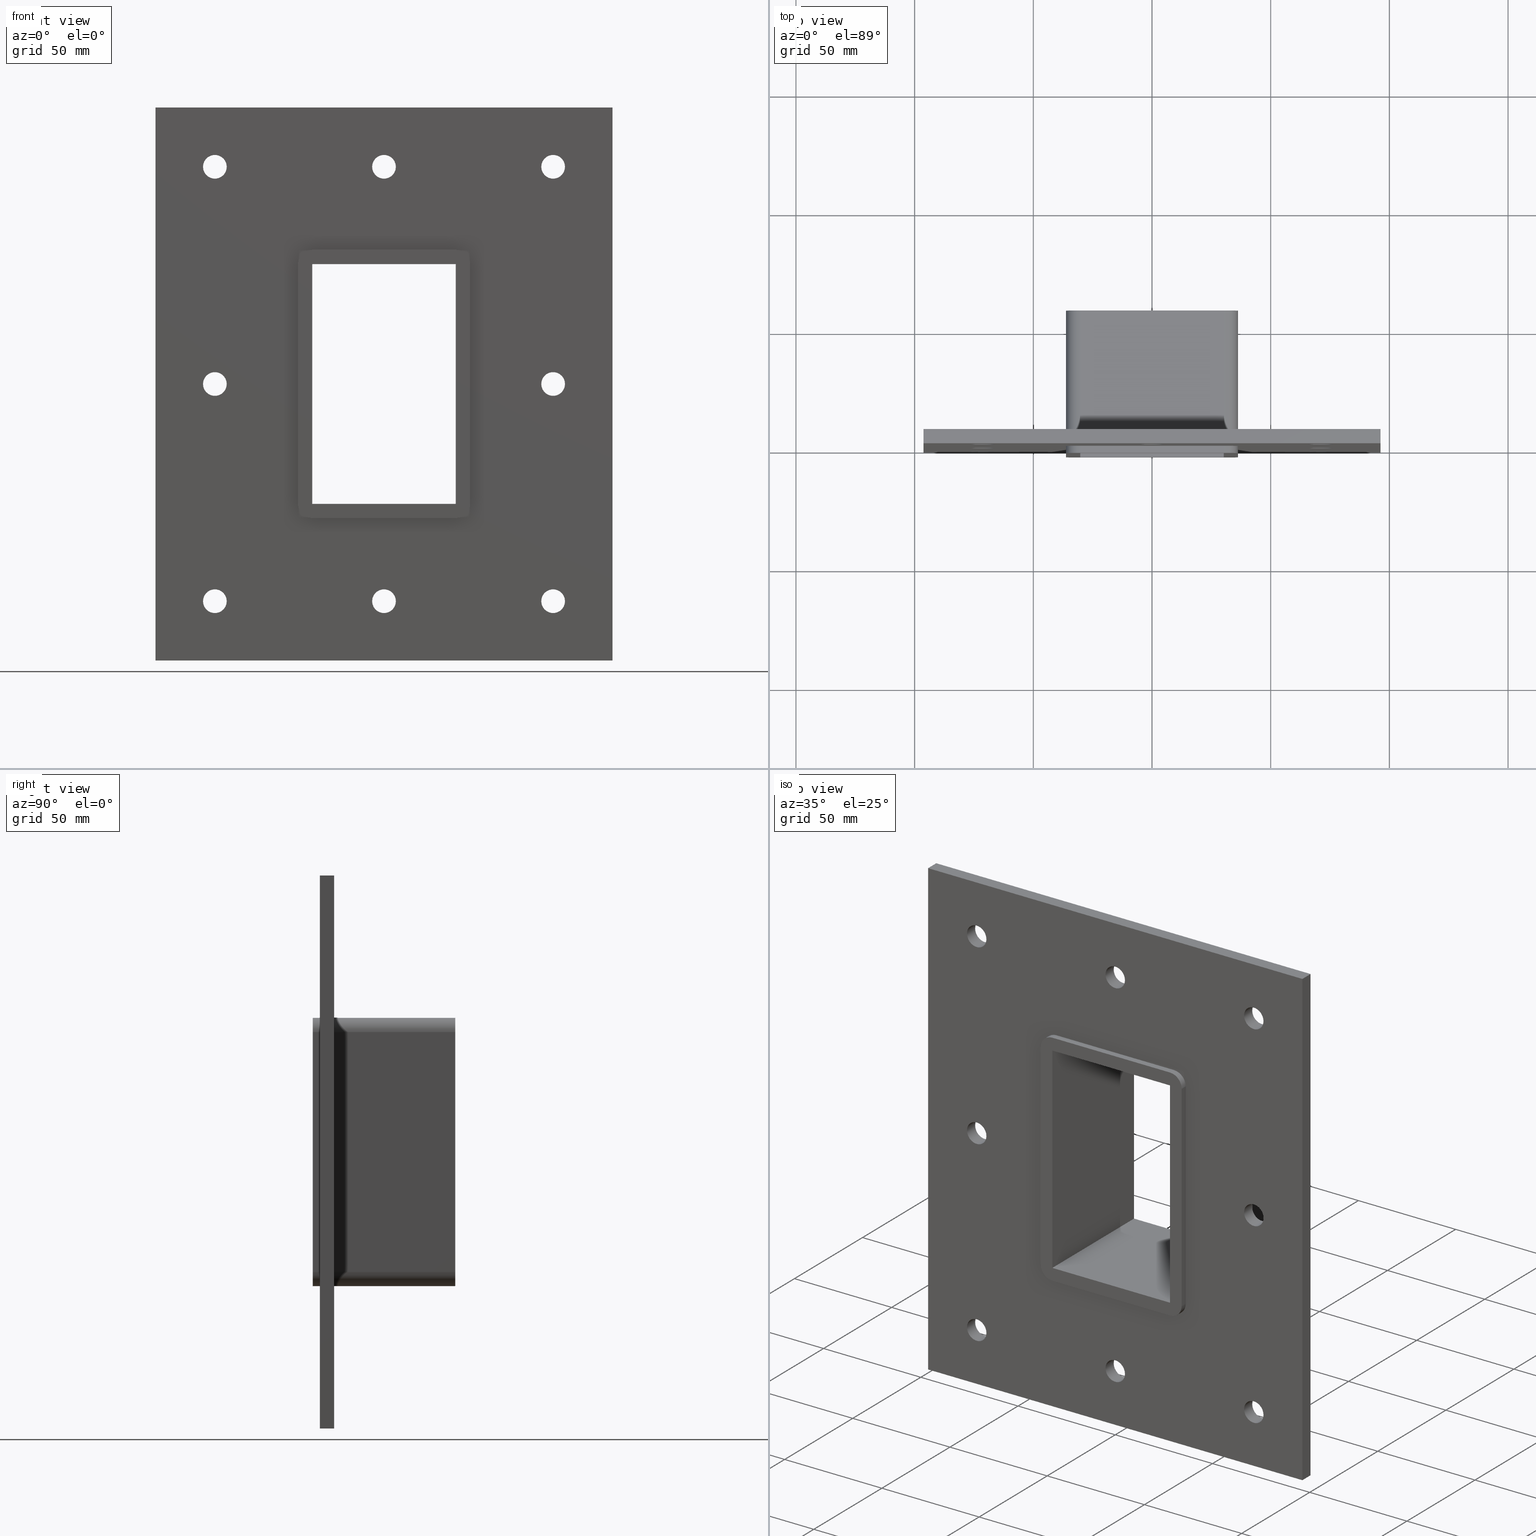
[diagram: canonical four-view strip — front | top / right | iso, engineering-drawing reading convention]
A machine part, canonical four-view strip (front | top / right | iso — engineering-drawing reading convention). The complete STEP part file that produces these views, byte-faithful:
ISO-10303-21;
HEADER;
/****************************************************************
 * Generated by software with PDElib inside                    *
 * PDElib Version v51a, created Wed 11/30/2011                  *
 * ITI Transcendata (http://www.transcendata.com/)              *
 ****************************************************************/
FILE_DESCRIPTION((''),'2;1');
FILE_NAME('L:\\roxtec-se\\Projects\\Ongoing_Projects\\12403 Transit Designer\\Product-data\\Product Data\\Transit designer Cad Generator\\CreatedFiles\\STEP\\GBEX1X1.stp','2015-02-17T15:00:13',(''),(''),'Autodesk Inventor 2013','Autodesk Inventor 2013','');
FILE_SCHEMA(('AUTOMOTIVE_DESIGN { 1 0 10303 214 1 1 1 1 }'));
ENDSEC;
DATA;
#5=APPLICATION_CONTEXT('automotive design');
#6=APPLICATION_PROTOCOL_DEFINITION('International Standard','automotive_design',2001,#5);
#7=PRODUCT_CONTEXT('',#5,'mechanical');
#8=PRODUCT('G B Ex','G B Ex',$,(#7));
#9=PRODUCT_RELATED_PRODUCT_CATEGORY('part',$,(#8));
#10=PRODUCT_DEFINITION_FORMATION('',$,#8);
#11=PRODUCT_DEFINITION_CONTEXT('part definition',#5,'design');
#12=PRODUCT_DEFINITION('',$,#10,#11);
#18=(NAMED_UNIT(*)PLANE_ANGLE_UNIT()SI_UNIT($,.RADIAN.));
#19=DIMENSIONAL_EXPONENTS(0.0,0.0,0.0,0.0,0.0,0.0,0.0);
#20=PLANE_ANGLE_MEASURE_WITH_UNIT(PLANE_ANGLE_MEASURE(0.0174532925),#18);
#24=(CONVERSION_BASED_UNIT('DEGREE',#20)NAMED_UNIT(#19)PLANE_ANGLE_UNIT());
#28=(NAMED_UNIT(*)SI_UNIT($,.STERADIAN.)SOLID_ANGLE_UNIT());
#32=(LENGTH_UNIT()NAMED_UNIT(*)SI_UNIT(.MILLI.,.METRE.));
#34=UNCERTAINTY_MEASURE_WITH_UNIT(LENGTH_MEASURE(0.01),#32,'DISTANCE_ACCURACY_VALUE','');
#36=(GEOMETRIC_REPRESENTATION_CONTEXT(3)GLOBAL_UNCERTAINTY_ASSIGNED_CONTEXT((#34))GLOBAL_UNIT_ASSIGNED_CONTEXT((#24,#28,#32))REPRESENTATION_CONTEXT('None','None'));
#37=AXIS2_PLACEMENT_3D('',#38,#39,#40);
#38=CARTESIAN_POINT('',(0.0,0.0,0.0));
#39=DIRECTION('',(0.0,0.0,1.0));
#40=DIRECTION('',(1.0,0.0,0.0));
#41=SHAPE_REPRESENTATION('',(#37),#36);
#42=PRODUCT_DEFINITION_SHAPE('','',#12);
#43=SHAPE_DEFINITION_REPRESENTATION(#42,#41);
#49=(NAMED_UNIT(*)PLANE_ANGLE_UNIT()SI_UNIT($,.RADIAN.));
#50=DIMENSIONAL_EXPONENTS(0.0,0.0,0.0,0.0,0.0,0.0,0.0);
#51=PLANE_ANGLE_MEASURE_WITH_UNIT(PLANE_ANGLE_MEASURE(0.0174532925),#49);
#55=(CONVERSION_BASED_UNIT('DEGREE',#51)NAMED_UNIT(#50)PLANE_ANGLE_UNIT());
#59=(NAMED_UNIT(*)SI_UNIT($,.STERADIAN.)SOLID_ANGLE_UNIT());
#63=(LENGTH_UNIT()NAMED_UNIT(*)SI_UNIT(.MILLI.,.METRE.));
#65=UNCERTAINTY_MEASURE_WITH_UNIT(LENGTH_MEASURE(0.000001),#63,'DISTANCE_ACCURACY_VALUE','');
#67=(GEOMETRIC_REPRESENTATION_CONTEXT(3)GLOBAL_UNCERTAINTY_ASSIGNED_CONTEXT((#65))GLOBAL_UNIT_ASSIGNED_CONTEXT((#55,#59,#63))REPRESENTATION_CONTEXT('','3D'));
#68=CARTESIAN_POINT('',(-71.250000000000114,308.13187112014236,-91.500000000000028));
#69=DIRECTION('',(0.0,-1.0,0.0));
#70=DIRECTION('',(1.0,0.0,0.0));
#71=AXIS2_PLACEMENT_3D('',#68,#69,#70);
#72=CYLINDRICAL_SURFACE('',#71,5.0);
#73=CARTESIAN_POINT('',(-76.250000000000114,6.000000000000014,-91.500000000000028));
#74=VERTEX_POINT('',#73);
#75=CARTESIAN_POINT('',(-71.250000000000114,6.000000000000014,-91.500000000000028));
#76=DIRECTION('',(0.0,-1.0,0.0));
#77=DIRECTION('',(1.0,0.0,0.0));
#78=AXIS2_PLACEMENT_3D('',#75,#76,#77);
#79=CIRCLE('',#78,5.0);
#80=EDGE_CURVE('',#74,#74,#79,.T.);
#81=ORIENTED_EDGE('',*,*,#80,.F.);
#82=EDGE_LOOP('',(#81));
#83=FACE_OUTER_BOUND('',#82,.T.);
#84=CARTESIAN_POINT('',(-66.250000000000114,0.0,-91.500000000000028));
#85=VERTEX_POINT('',#84);
#86=CARTESIAN_POINT('',(-71.250000000000114,0.0,-91.500000000000028));
#87=DIRECTION('',(0.0,1.0,0.0));
#88=DIRECTION('',(1.0,0.0,0.0));
#89=AXIS2_PLACEMENT_3D('',#86,#87,#88);
#90=CIRCLE('',#89,5.0);
#91=EDGE_CURVE('',#85,#85,#90,.T.);
#92=ORIENTED_EDGE('',*,*,#91,.F.);
#93=EDGE_LOOP('',(#92));
#94=FACE_BOUND('',#93,.T.);
#95=ADVANCED_FACE('',(#83,#94),#72,.F.);
#96=CARTESIAN_POINT('',(71.249999999999886,308.13187112014236,-1.776357E-014));
#97=DIRECTION('',(0.0,-1.0,0.0));
#98=DIRECTION('',(1.0,0.0,0.0));
#99=AXIS2_PLACEMENT_3D('',#96,#97,#98);
#100=CYLINDRICAL_SURFACE('',#99,5.0);
#101=CARTESIAN_POINT('',(66.249999999999886,6.000000000000014,-1.776357E-014));
#102=VERTEX_POINT('',#101);
#103=CARTESIAN_POINT('',(71.249999999999886,6.000000000000014,-1.776357E-014));
#104=DIRECTION('',(0.0,-1.0,0.0));
#105=DIRECTION('',(1.0,0.0,0.0));
#106=AXIS2_PLACEMENT_3D('',#103,#104,#105);
#107=CIRCLE('',#106,5.0);
#108=EDGE_CURVE('',#102,#102,#107,.T.);
#109=ORIENTED_EDGE('',*,*,#108,.F.);
#110=EDGE_LOOP('',(#109));
#111=FACE_OUTER_BOUND('',#110,.T.);
#112=CARTESIAN_POINT('',(76.249999999999886,0.0,-1.776357E-014));
#113=VERTEX_POINT('',#112);
#114=CARTESIAN_POINT('',(71.249999999999886,0.0,-1.776357E-014));
#115=DIRECTION('',(0.0,1.0,0.0));
#116=DIRECTION('',(1.0,0.0,0.0));
#117=AXIS2_PLACEMENT_3D('',#114,#115,#116);
#118=CIRCLE('',#117,5.0);
#119=EDGE_CURVE('',#113,#113,#118,.T.);
#120=ORIENTED_EDGE('',*,*,#119,.F.);
#121=EDGE_LOOP('',(#120));
#122=FACE_BOUND('',#121,.T.);
#123=ADVANCED_FACE('',(#111,#122),#100,.F.);
#124=CARTESIAN_POINT('',(-71.250000000000114,308.13187112014236,-1.776357E-014));
#125=DIRECTION('',(0.0,-1.0,0.0));
#126=DIRECTION('',(1.0,0.0,0.0));
#127=AXIS2_PLACEMENT_3D('',#124,#125,#126);
#128=CYLINDRICAL_SURFACE('',#127,5.0);
#129=CARTESIAN_POINT('',(-76.250000000000114,6.000000000000014,-1.776357E-014));
#130=VERTEX_POINT('',#129);
#131=CARTESIAN_POINT('',(-71.250000000000114,6.000000000000014,-1.776357E-014));
#132=DIRECTION('',(0.0,-1.0,0.0));
#133=DIRECTION('',(1.0,0.0,0.0));
#134=AXIS2_PLACEMENT_3D('',#131,#132,#133);
#135=CIRCLE('',#134,5.0);
#136=EDGE_CURVE('',#130,#130,#135,.T.);
#137=ORIENTED_EDGE('',*,*,#136,.F.);
#138=EDGE_LOOP('',(#137));
#139=FACE_OUTER_BOUND('',#138,.T.);
#140=CARTESIAN_POINT('',(-66.250000000000114,0.0,-1.776357E-014));
#141=VERTEX_POINT('',#140);
#142=CARTESIAN_POINT('',(-71.250000000000114,0.0,-1.776357E-014));
#143=DIRECTION('',(0.0,1.0,0.0));
#144=DIRECTION('',(1.0,0.0,0.0));
#145=AXIS2_PLACEMENT_3D('',#142,#143,#144);
#146=CIRCLE('',#145,5.0);
#147=EDGE_CURVE('',#141,#141,#146,.T.);
#148=ORIENTED_EDGE('',*,*,#147,.F.);
#149=EDGE_LOOP('',(#148));
#150=FACE_BOUND('',#149,.T.);
#151=ADVANCED_FACE('',(#139,#150),#128,.F.);
#152=CARTESIAN_POINT('',(-1.154632E-013,308.13187112014236,91.499999999999986));
#153=DIRECTION('',(0.0,-1.0,0.0));
#154=DIRECTION('',(1.0,0.0,0.0));
#155=AXIS2_PLACEMENT_3D('',#152,#153,#154);
#156=CYLINDRICAL_SURFACE('',#155,5.0);
#157=CARTESIAN_POINT('',(-5.000000000000116,6.000000000000014,91.499999999999986));
#158=VERTEX_POINT('',#157);
#159=CARTESIAN_POINT('',(-1.154632E-013,6.000000000000014,91.499999999999986));
#160=DIRECTION('',(0.0,-1.0,0.0));
#161=DIRECTION('',(1.0,0.0,0.0));
#162=AXIS2_PLACEMENT_3D('',#159,#160,#161);
#163=CIRCLE('',#162,5.0);
#164=EDGE_CURVE('',#158,#158,#163,.T.);
#165=ORIENTED_EDGE('',*,*,#164,.F.);
#166=EDGE_LOOP('',(#165));
#167=FACE_OUTER_BOUND('',#166,.T.);
#168=CARTESIAN_POINT('',(4.999999999999885,0.0,91.499999999999986));
#169=VERTEX_POINT('',#168);
#170=CARTESIAN_POINT('',(-1.154632E-013,0.0,91.499999999999986));
#171=DIRECTION('',(0.0,1.0,0.0));
#172=DIRECTION('',(1.0,0.0,0.0));
#173=AXIS2_PLACEMENT_3D('',#170,#171,#172);
#174=CIRCLE('',#173,5.0);
#175=EDGE_CURVE('',#169,#169,#174,.T.);
#176=ORIENTED_EDGE('',*,*,#175,.F.);
#177=EDGE_LOOP('',(#176));
#178=FACE_BOUND('',#177,.T.);
#179=ADVANCED_FACE('',(#167,#178),#156,.F.);
#180=CARTESIAN_POINT('',(-1.154632E-013,308.13187112014236,-91.5));
#181=DIRECTION('',(0.0,-1.0,0.0));
#182=DIRECTION('',(1.0,0.0,0.0));
#183=AXIS2_PLACEMENT_3D('',#180,#181,#182);
#184=CYLINDRICAL_SURFACE('',#183,5.0);
#185=CARTESIAN_POINT('',(-5.000000000000116,6.000000000000014,-91.5));
#186=VERTEX_POINT('',#185);
#187=CARTESIAN_POINT('',(-1.154632E-013,6.000000000000014,-91.5));
#188=DIRECTION('',(0.0,-1.0,0.0));
#189=DIRECTION('',(1.0,0.0,0.0));
#190=AXIS2_PLACEMENT_3D('',#187,#188,#189);
#191=CIRCLE('',#190,5.0);
#192=EDGE_CURVE('',#186,#186,#191,.T.);
#193=ORIENTED_EDGE('',*,*,#192,.F.);
#194=EDGE_LOOP('',(#193));
#195=FACE_OUTER_BOUND('',#194,.T.);
#196=CARTESIAN_POINT('',(4.999999999999885,0.0,-91.5));
#197=VERTEX_POINT('',#196);
#198=CARTESIAN_POINT('',(-1.154632E-013,0.0,-91.5));
#199=DIRECTION('',(0.0,1.0,0.0));
#200=DIRECTION('',(1.0,0.0,0.0));
#201=AXIS2_PLACEMENT_3D('',#198,#199,#200);
#202=CIRCLE('',#201,5.0);
#203=EDGE_CURVE('',#197,#197,#202,.T.);
#204=ORIENTED_EDGE('',*,*,#203,.F.);
#205=EDGE_LOOP('',(#204));
#206=FACE_BOUND('',#205,.T.);
#207=ADVANCED_FACE('',(#195,#206),#184,.F.);
#208=CARTESIAN_POINT('',(71.249999999999886,308.13187112014236,-91.5));
#209=DIRECTION('',(0.0,-1.0,0.0));
#210=DIRECTION('',(1.0,0.0,0.0));
#211=AXIS2_PLACEMENT_3D('',#208,#209,#210);
#212=CYLINDRICAL_SURFACE('',#211,5.0);
#213=CARTESIAN_POINT('',(66.249999999999886,6.000000000000014,-91.5));
#214=VERTEX_POINT('',#213);
#215=CARTESIAN_POINT('',(71.249999999999886,6.000000000000014,-91.5));
#216=DIRECTION('',(0.0,-1.0,0.0));
#217=DIRECTION('',(1.0,0.0,0.0));
#218=AXIS2_PLACEMENT_3D('',#215,#216,#217);
#219=CIRCLE('',#218,5.0);
#220=EDGE_CURVE('',#214,#214,#219,.T.);
#221=ORIENTED_EDGE('',*,*,#220,.F.);
#222=EDGE_LOOP('',(#221));
#223=FACE_OUTER_BOUND('',#222,.T.);
#224=CARTESIAN_POINT('',(76.249999999999886,0.0,-91.5));
#225=VERTEX_POINT('',#224);
#226=CARTESIAN_POINT('',(71.249999999999886,0.0,-91.5));
#227=DIRECTION('',(0.0,1.0,0.0));
#228=DIRECTION('',(1.0,0.0,0.0));
#229=AXIS2_PLACEMENT_3D('',#226,#227,#228);
#230=CIRCLE('',#229,5.0);
#231=EDGE_CURVE('',#225,#225,#230,.T.);
#232=ORIENTED_EDGE('',*,*,#231,.F.);
#233=EDGE_LOOP('',(#232));
#234=FACE_BOUND('',#233,.T.);
#235=ADVANCED_FACE('',(#223,#234),#212,.F.);
#236=CARTESIAN_POINT('',(-71.250000000000114,308.13187112014236,91.499999999999986));
#237=DIRECTION('',(0.0,-1.0,0.0));
#238=DIRECTION('',(1.0,0.0,0.0));
#239=AXIS2_PLACEMENT_3D('',#236,#237,#238);
#240=CYLINDRICAL_SURFACE('',#239,5.0);
#241=CARTESIAN_POINT('',(-76.250000000000114,6.000000000000014,91.499999999999986));
#242=VERTEX_POINT('',#241);
#243=CARTESIAN_POINT('',(-71.250000000000114,6.000000000000014,91.499999999999986));
#244=DIRECTION('',(0.0,-1.0,0.0));
#245=DIRECTION('',(1.0,0.0,0.0));
#246=AXIS2_PLACEMENT_3D('',#243,#244,#245);
#247=CIRCLE('',#246,5.0);
#248=EDGE_CURVE('',#242,#242,#247,.T.);
#249=ORIENTED_EDGE('',*,*,#248,.F.);
#250=EDGE_LOOP('',(#249));
#251=FACE_OUTER_BOUND('',#250,.T.);
#252=CARTESIAN_POINT('',(-66.250000000000114,0.0,91.499999999999986));
#253=VERTEX_POINT('',#252);
#254=CARTESIAN_POINT('',(-71.250000000000114,0.0,91.499999999999986));
#255=DIRECTION('',(0.0,1.0,0.0));
#256=DIRECTION('',(1.0,0.0,0.0));
#257=AXIS2_PLACEMENT_3D('',#254,#255,#256);
#258=CIRCLE('',#257,5.0);
#259=EDGE_CURVE('',#253,#253,#258,.T.);
#260=ORIENTED_EDGE('',*,*,#259,.F.);
#261=EDGE_LOOP('',(#260));
#262=FACE_BOUND('',#261,.T.);
#263=ADVANCED_FACE('',(#251,#262),#240,.F.);
#264=CARTESIAN_POINT('',(71.249999999999886,308.13187112014236,91.499999999999986));
#265=DIRECTION('',(0.0,-1.0,0.0));
#266=DIRECTION('',(1.0,0.0,0.0));
#267=AXIS2_PLACEMENT_3D('',#264,#265,#266);
#268=CYLINDRICAL_SURFACE('',#267,5.0);
#269=CARTESIAN_POINT('',(66.249999999999886,6.000000000000014,91.499999999999986));
#270=VERTEX_POINT('',#269);
#271=CARTESIAN_POINT('',(71.249999999999886,6.000000000000014,91.499999999999986));
#272=DIRECTION('',(0.0,-1.0,0.0));
#273=DIRECTION('',(1.0,0.0,0.0));
#274=AXIS2_PLACEMENT_3D('',#271,#272,#273);
#275=CIRCLE('',#274,5.0);
#276=EDGE_CURVE('',#270,#270,#275,.T.);
#277=ORIENTED_EDGE('',*,*,#276,.F.);
#278=EDGE_LOOP('',(#277));
#279=FACE_OUTER_BOUND('',#278,.T.);
#280=CARTESIAN_POINT('',(76.249999999999886,0.0,91.499999999999986));
#281=VERTEX_POINT('',#280);
#282=CARTESIAN_POINT('',(71.249999999999886,0.0,91.499999999999986));
#283=DIRECTION('',(0.0,1.0,0.0));
#284=DIRECTION('',(1.0,0.0,0.0));
#285=AXIS2_PLACEMENT_3D('',#282,#283,#284);
#286=CIRCLE('',#285,5.0);
#287=EDGE_CURVE('',#281,#281,#286,.T.);
#288=ORIENTED_EDGE('',*,*,#287,.F.);
#289=EDGE_LOOP('',(#288));
#290=FACE_BOUND('',#289,.T.);
#291=ADVANCED_FACE('',(#279,#290),#268,.F.);
#292=CARTESIAN_POINT('',(0.0,6.000000000000001,0.0));
#293=DIRECTION('',(0.0,1.0,0.0));
#294=DIRECTION('',(0.0,0.0,1.0));
#295=AXIS2_PLACEMENT_3D('',#292,#293,#294);
#296=PLANE('',#295);
#297=CARTESIAN_POINT('',(-96.25,6.000000000000001,116.5));
#298=VERTEX_POINT('',#297);
#299=CARTESIAN_POINT('',(96.25,6.000000000000001,116.5));
#300=VERTEX_POINT('',#299);
#301=CARTESIAN_POINT('',(-96.25,6.000000000000001,116.5));
#302=DIRECTION('',(1.0,0.0,0.0));
#303=VECTOR('',#302,192.5);
#304=LINE('',#301,#303);
#305=EDGE_CURVE('',#298,#300,#304,.T.);
#306=ORIENTED_EDGE('',*,*,#305,.T.);
#307=CARTESIAN_POINT('',(96.25,6.000000000000001,-116.5));
#308=VERTEX_POINT('',#307);
#309=CARTESIAN_POINT('',(96.25,6.000000000000001,116.5));
#310=DIRECTION('',(0.0,0.0,-1.0));
#311=VECTOR('',#310,233.0);
#312=LINE('',#309,#311);
#313=EDGE_CURVE('',#300,#308,#312,.T.);
#314=ORIENTED_EDGE('',*,*,#313,.T.);
#315=CARTESIAN_POINT('',(-96.25,6.000000000000001,-116.5));
#316=VERTEX_POINT('',#315);
#317=CARTESIAN_POINT('',(96.25,6.000000000000001,-116.5));
#318=DIRECTION('',(-1.0,0.0,0.0));
#319=VECTOR('',#318,192.5);
#320=LINE('',#317,#319);
#321=EDGE_CURVE('',#308,#316,#320,.T.);
#322=ORIENTED_EDGE('',*,*,#321,.T.);
#323=CARTESIAN_POINT('',(-96.25,6.000000000000001,-116.5));
#324=DIRECTION('',(0.0,0.0,1.0));
#325=VECTOR('',#324,233.0);
#326=LINE('',#323,#325);
#327=EDGE_CURVE('',#316,#298,#326,.T.);
#328=ORIENTED_EDGE('',*,*,#327,.T.);
#329=EDGE_LOOP('',(#306,#314,#322,#328));
#330=FACE_OUTER_BOUND('',#329,.T.);
#331=ORIENTED_EDGE('',*,*,#80,.T.);
#332=EDGE_LOOP('',(#331));
#333=FACE_BOUND('',#332,.T.);
#334=ORIENTED_EDGE('',*,*,#108,.T.);
#335=EDGE_LOOP('',(#334));
#336=FACE_BOUND('',#335,.T.);
#337=ORIENTED_EDGE('',*,*,#136,.T.);
#338=EDGE_LOOP('',(#337));
#339=FACE_BOUND('',#338,.T.);
#340=ORIENTED_EDGE('',*,*,#164,.T.);
#341=EDGE_LOOP('',(#340));
#342=FACE_BOUND('',#341,.T.);
#343=ORIENTED_EDGE('',*,*,#192,.T.);
#344=EDGE_LOOP('',(#343));
#345=FACE_BOUND('',#344,.T.);
#346=ORIENTED_EDGE('',*,*,#220,.T.);
#347=EDGE_LOOP('',(#346));
#348=FACE_BOUND('',#347,.T.);
#349=ORIENTED_EDGE('',*,*,#248,.T.);
#350=EDGE_LOOP('',(#349));
#351=FACE_BOUND('',#350,.T.);
#352=ORIENTED_EDGE('',*,*,#276,.T.);
#353=EDGE_LOOP('',(#352));
#354=FACE_BOUND('',#353,.T.);
#355=CARTESIAN_POINT('',(-30.250000000000004,6.000000000000001,-56.5));
#356=VERTEX_POINT('',#355);
#357=CARTESIAN_POINT('',(-36.250000000000007,6.000000000000001,-50.500000000000007));
#358=VERTEX_POINT('',#357);
#359=CARTESIAN_POINT('',(-30.250000000000004,6.000000000000001,-50.500000000000007));
#360=DIRECTION('',(0.0,1.0,0.0));
#361=DIRECTION('',(-0.707106781186547,0.0,-0.707106781186547));
#362=AXIS2_PLACEMENT_3D('',#359,#360,#361);
#363=CIRCLE('',#362,6.0);
#364=EDGE_CURVE('',#356,#358,#363,.T.);
#365=ORIENTED_EDGE('',*,*,#364,.F.);
#366=CARTESIAN_POINT('',(30.250000000000004,6.000000000000001,-56.5));
#367=VERTEX_POINT('',#366);
#368=CARTESIAN_POINT('',(30.250000000000007,6.000000000000001,-56.5));
#369=DIRECTION('',(-1.0,0.0,0.0));
#370=VECTOR('',#369,60.5);
#371=LINE('',#368,#370);
#372=EDGE_CURVE('',#367,#356,#371,.T.);
#373=ORIENTED_EDGE('',*,*,#372,.F.);
#374=CARTESIAN_POINT('',(36.250000000000007,6.000000000000001,-50.500000000000007));
#375=VERTEX_POINT('',#374);
#376=CARTESIAN_POINT('',(30.250000000000004,6.000000000000001,-50.500000000000007));
#377=DIRECTION('',(0.0,1.0,0.0));
#378=DIRECTION('',(0.707106781186547,0.0,-0.707106781186547));
#379=AXIS2_PLACEMENT_3D('',#376,#377,#378);
#380=CIRCLE('',#379,6.0);
#381=EDGE_CURVE('',#375,#367,#380,.T.);
#382=ORIENTED_EDGE('',*,*,#381,.F.);
#383=CARTESIAN_POINT('',(36.250000000000007,6.000000000000001,50.500000000000007));
#384=VERTEX_POINT('',#383);
#385=CARTESIAN_POINT('',(36.250000000000007,6.000000000000001,50.500000000000007));
#386=DIRECTION('',(0.0,0.0,-1.0));
#387=VECTOR('',#386,101.00000000000003);
#388=LINE('',#385,#387);
#389=EDGE_CURVE('',#384,#375,#388,.T.);
#390=ORIENTED_EDGE('',*,*,#389,.F.);
#391=CARTESIAN_POINT('',(30.250000000000004,6.000000000000001,56.5));
#392=VERTEX_POINT('',#391);
#393=CARTESIAN_POINT('',(30.250000000000004,6.000000000000001,50.500000000000007));
#394=DIRECTION('',(0.0,1.0,0.0));
#395=DIRECTION('',(0.707106781186547,0.0,0.707106781186547));
#396=AXIS2_PLACEMENT_3D('',#393,#394,#395);
#397=CIRCLE('',#396,6.0);
#398=EDGE_CURVE('',#392,#384,#397,.T.);
#399=ORIENTED_EDGE('',*,*,#398,.F.);
#400=CARTESIAN_POINT('',(-30.250000000000004,6.000000000000001,56.5));
#401=VERTEX_POINT('',#400);
#402=CARTESIAN_POINT('',(-30.250000000000007,6.000000000000001,56.5));
#403=DIRECTION('',(1.0,0.0,0.0));
#404=VECTOR('',#403,60.5);
#405=LINE('',#402,#404);
#406=EDGE_CURVE('',#401,#392,#405,.T.);
#407=ORIENTED_EDGE('',*,*,#406,.F.);
#408=CARTESIAN_POINT('',(-36.250000000000007,6.000000000000001,50.500000000000007));
#409=VERTEX_POINT('',#408);
#410=CARTESIAN_POINT('',(-30.250000000000004,6.000000000000001,50.500000000000007));
#411=DIRECTION('',(0.0,1.0,0.0));
#412=DIRECTION('',(-0.707106781186547,0.0,0.707106781186547));
#413=AXIS2_PLACEMENT_3D('',#410,#411,#412);
#414=CIRCLE('',#413,6.0);
#415=EDGE_CURVE('',#409,#401,#414,.T.);
#416=ORIENTED_EDGE('',*,*,#415,.F.);
#417=CARTESIAN_POINT('',(-36.250000000000007,6.000000000000001,-50.500000000000007));
#418=DIRECTION('',(0.0,0.0,1.0));
#419=VECTOR('',#418,101.00000000000003);
#420=LINE('',#417,#419);
#421=EDGE_CURVE('',#358,#409,#420,.T.);
#422=ORIENTED_EDGE('',*,*,#421,.F.);
#423=EDGE_LOOP('',(#365,#373,#382,#390,#399,#407,#416,#422));
#424=FACE_BOUND('',#423,.T.);
#425=ADVANCED_FACE('',(#330,#333,#336,#339,#342,#345,#348,#351,#354,#424),#296,.T.);
#426=CARTESIAN_POINT('',(0.0,0.0,0.0));
#427=DIRECTION('',(0.0,1.0,0.0));
#428=DIRECTION('',(0.0,0.0,1.0));
#429=AXIS2_PLACEMENT_3D('',#426,#427,#428);
#430=PLANE('',#429);
#431=CARTESIAN_POINT('',(-96.25,0.0,116.5));
#432=VERTEX_POINT('',#431);
#433=CARTESIAN_POINT('',(96.25,0.0,116.5));
#434=VERTEX_POINT('',#433);
#435=CARTESIAN_POINT('',(-96.25,0.0,116.5));
#436=DIRECTION('',(1.0,0.0,0.0));
#437=VECTOR('',#436,192.5);
#438=LINE('',#435,#437);
#439=EDGE_CURVE('',#432,#434,#438,.T.);
#440=ORIENTED_EDGE('',*,*,#439,.F.);
#441=CARTESIAN_POINT('',(-96.25,0.0,-116.5));
#442=VERTEX_POINT('',#441);
#443=CARTESIAN_POINT('',(-96.25,0.0,-116.5));
#444=DIRECTION('',(0.0,0.0,1.0));
#445=VECTOR('',#444,233.0);
#446=LINE('',#443,#445);
#447=EDGE_CURVE('',#442,#432,#446,.T.);
#448=ORIENTED_EDGE('',*,*,#447,.F.);
#449=CARTESIAN_POINT('',(96.25,0.0,-116.5));
#450=VERTEX_POINT('',#449);
#451=CARTESIAN_POINT('',(96.25,0.0,-116.5));
#452=DIRECTION('',(-1.0,0.0,0.0));
#453=VECTOR('',#452,192.5);
#454=LINE('',#451,#453);
#455=EDGE_CURVE('',#450,#442,#454,.T.);
#456=ORIENTED_EDGE('',*,*,#455,.F.);
#457=CARTESIAN_POINT('',(96.25,0.0,116.5));
#458=DIRECTION('',(0.0,0.0,-1.0));
#459=VECTOR('',#458,233.0);
#460=LINE('',#457,#459);
#461=EDGE_CURVE('',#434,#450,#460,.T.);
#462=ORIENTED_EDGE('',*,*,#461,.F.);
#463=EDGE_LOOP('',(#440,#448,#456,#462));
#464=FACE_OUTER_BOUND('',#463,.T.);
#465=ORIENTED_EDGE('',*,*,#91,.T.);
#466=EDGE_LOOP('',(#465));
#467=FACE_BOUND('',#466,.T.);
#468=ORIENTED_EDGE('',*,*,#119,.T.);
#469=EDGE_LOOP('',(#468));
#470=FACE_BOUND('',#469,.T.);
#471=ORIENTED_EDGE('',*,*,#147,.T.);
#472=EDGE_LOOP('',(#471));
#473=FACE_BOUND('',#472,.T.);
#474=ORIENTED_EDGE('',*,*,#175,.T.);
#475=EDGE_LOOP('',(#474));
#476=FACE_BOUND('',#475,.T.);
#477=ORIENTED_EDGE('',*,*,#203,.T.);
#478=EDGE_LOOP('',(#477));
#479=FACE_BOUND('',#478,.T.);
#480=ORIENTED_EDGE('',*,*,#231,.T.);
#481=EDGE_LOOP('',(#480));
#482=FACE_BOUND('',#481,.T.);
#483=ORIENTED_EDGE('',*,*,#259,.T.);
#484=EDGE_LOOP('',(#483));
#485=FACE_BOUND('',#484,.T.);
#486=ORIENTED_EDGE('',*,*,#287,.T.);
#487=EDGE_LOOP('',(#486));
#488=FACE_BOUND('',#487,.T.);
#489=CARTESIAN_POINT('',(-36.250000000000007,0.0,-50.500000000000007));
#490=VERTEX_POINT('',#489);
#491=CARTESIAN_POINT('',(-30.250000000000004,0.0,-56.5));
#492=VERTEX_POINT('',#491);
#493=CARTESIAN_POINT('',(-30.250000000000004,0.0,-50.500000000000007));
#494=DIRECTION('',(0.0,-1.0,0.0));
#495=DIRECTION('',(-0.707106781186547,0.0,-0.707106781186547));
#496=AXIS2_PLACEMENT_3D('',#493,#494,#495);
#497=CIRCLE('',#496,6.0);
#498=EDGE_CURVE('',#490,#492,#497,.T.);
#499=ORIENTED_EDGE('',*,*,#498,.F.);
#500=CARTESIAN_POINT('',(-36.250000000000007,0.0,50.500000000000007));
#501=VERTEX_POINT('',#500);
#502=CARTESIAN_POINT('',(-36.250000000000007,0.0,50.500000000000014));
#503=DIRECTION('',(0.0,0.0,-1.0));
#504=VECTOR('',#503,101.00000000000003);
#505=LINE('',#502,#504);
#506=EDGE_CURVE('',#501,#490,#505,.T.);
#507=ORIENTED_EDGE('',*,*,#506,.F.);
#508=CARTESIAN_POINT('',(-30.250000000000004,0.0,56.5));
#509=VERTEX_POINT('',#508);
#510=CARTESIAN_POINT('',(-30.250000000000004,0.0,50.500000000000007));
#511=DIRECTION('',(0.0,-1.0,0.0));
#512=DIRECTION('',(-0.707106781186547,0.0,0.707106781186547));
#513=AXIS2_PLACEMENT_3D('',#510,#511,#512);
#514=CIRCLE('',#513,6.0);
#515=EDGE_CURVE('',#509,#501,#514,.T.);
#516=ORIENTED_EDGE('',*,*,#515,.F.);
#517=CARTESIAN_POINT('',(30.250000000000004,0.0,56.5));
#518=VERTEX_POINT('',#517);
#519=CARTESIAN_POINT('',(30.249999999999996,0.0,56.5));
#520=DIRECTION('',(-1.0,0.0,0.0));
#521=VECTOR('',#520,60.5);
#522=LINE('',#519,#521);
#523=EDGE_CURVE('',#518,#509,#522,.T.);
#524=ORIENTED_EDGE('',*,*,#523,.F.);
#525=CARTESIAN_POINT('',(36.250000000000007,0.0,50.500000000000007));
#526=VERTEX_POINT('',#525);
#527=CARTESIAN_POINT('',(30.250000000000004,0.0,50.500000000000007));
#528=DIRECTION('',(0.0,-1.0,0.0));
#529=DIRECTION('',(0.707106781186547,0.0,0.707106781186547));
#530=AXIS2_PLACEMENT_3D('',#527,#528,#529);
#531=CIRCLE('',#530,6.0);
#532=EDGE_CURVE('',#526,#518,#531,.T.);
#533=ORIENTED_EDGE('',*,*,#532,.F.);
#534=CARTESIAN_POINT('',(36.250000000000007,0.0,-50.500000000000007));
#535=VERTEX_POINT('',#534);
#536=CARTESIAN_POINT('',(36.250000000000007,0.0,-50.500000000000014));
#537=DIRECTION('',(0.0,0.0,1.0));
#538=VECTOR('',#537,101.00000000000003);
#539=LINE('',#536,#538);
#540=EDGE_CURVE('',#535,#526,#539,.T.);
#541=ORIENTED_EDGE('',*,*,#540,.F.);
#542=CARTESIAN_POINT('',(30.250000000000004,0.0,-56.5));
#543=VERTEX_POINT('',#542);
#544=CARTESIAN_POINT('',(30.250000000000004,0.0,-50.500000000000007));
#545=DIRECTION('',(0.0,-1.0,0.0));
#546=DIRECTION('',(0.707106781186547,0.0,-0.707106781186547));
#547=AXIS2_PLACEMENT_3D('',#544,#545,#546);
#548=CIRCLE('',#547,6.0);
#549=EDGE_CURVE('',#543,#535,#548,.T.);
#550=ORIENTED_EDGE('',*,*,#549,.F.);
#551=CARTESIAN_POINT('',(-30.249999999999996,0.0,-56.5));
#552=DIRECTION('',(1.0,0.0,0.0));
#553=VECTOR('',#552,60.5);
#554=LINE('',#551,#553);
#555=EDGE_CURVE('',#492,#543,#554,.T.);
#556=ORIENTED_EDGE('',*,*,#555,.F.);
#557=EDGE_LOOP('',(#499,#507,#516,#524,#533,#541,#550,#556));
#558=FACE_BOUND('',#557,.T.);
#559=ADVANCED_FACE('',(#464,#467,#470,#473,#476,#479,#482,#485,#488,#558),#430,.F.);
#560=CARTESIAN_POINT('',(-96.25,0.0,-116.5));
#561=DIRECTION('',(-1.0,0.0,0.0));
#562=DIRECTION('',(0.0,0.0,1.0));
#563=AXIS2_PLACEMENT_3D('',#560,#561,#562);
#564=PLANE('',#563);
#565=ORIENTED_EDGE('',*,*,#447,.T.);
#566=CARTESIAN_POINT('',(-96.25,0.0,116.5));
#567=DIRECTION('',(0.0,1.0,0.0));
#568=VECTOR('',#567,6.000000000000001);
#569=LINE('',#566,#568);
#570=EDGE_CURVE('',#432,#298,#569,.T.);
#571=ORIENTED_EDGE('',*,*,#570,.T.);
#572=ORIENTED_EDGE('',*,*,#327,.F.);
#573=CARTESIAN_POINT('',(-96.25,0.0,-116.5));
#574=DIRECTION('',(0.0,1.0,0.0));
#575=VECTOR('',#574,6.000000000000001);
#576=LINE('',#573,#575);
#577=EDGE_CURVE('',#442,#316,#576,.T.);
#578=ORIENTED_EDGE('',*,*,#577,.F.);
#579=EDGE_LOOP('',(#565,#571,#572,#578));
#580=FACE_OUTER_BOUND('',#579,.T.);
#581=ADVANCED_FACE('',(#580),#564,.T.);
#582=CARTESIAN_POINT('',(96.25,0.0,-116.5));
#583=DIRECTION('',(0.0,0.0,-1.0));
#584=DIRECTION('',(-1.0,0.0,0.0));
#585=AXIS2_PLACEMENT_3D('',#582,#583,#584);
#586=PLANE('',#585);
#587=ORIENTED_EDGE('',*,*,#455,.T.);
#588=ORIENTED_EDGE('',*,*,#577,.T.);
#589=ORIENTED_EDGE('',*,*,#321,.F.);
#590=CARTESIAN_POINT('',(96.25,0.0,-116.5));
#591=DIRECTION('',(0.0,1.0,0.0));
#592=VECTOR('',#591,6.000000000000001);
#593=LINE('',#590,#592);
#594=EDGE_CURVE('',#450,#308,#593,.T.);
#595=ORIENTED_EDGE('',*,*,#594,.F.);
#596=EDGE_LOOP('',(#587,#588,#589,#595));
#597=FACE_OUTER_BOUND('',#596,.T.);
#598=ADVANCED_FACE('',(#597),#586,.T.);
#599=CARTESIAN_POINT('',(96.25,0.0,116.5));
#600=DIRECTION('',(1.0,0.0,0.0));
#601=DIRECTION('',(0.0,0.0,-1.0));
#602=AXIS2_PLACEMENT_3D('',#599,#600,#601);
#603=PLANE('',#602);
#604=ORIENTED_EDGE('',*,*,#461,.T.);
#605=ORIENTED_EDGE('',*,*,#594,.T.);
#606=ORIENTED_EDGE('',*,*,#313,.F.);
#607=CARTESIAN_POINT('',(96.25,0.0,116.5));
#608=DIRECTION('',(0.0,1.0,0.0));
#609=VECTOR('',#608,6.000000000000001);
#610=LINE('',#607,#609);
#611=EDGE_CURVE('',#434,#300,#610,.T.);
#612=ORIENTED_EDGE('',*,*,#611,.F.);
#613=EDGE_LOOP('',(#604,#605,#606,#612));
#614=FACE_OUTER_BOUND('',#613,.T.);
#615=ADVANCED_FACE('',(#614),#603,.T.);
#616=CARTESIAN_POINT('',(-96.25,0.0,116.5));
#617=DIRECTION('',(0.0,0.0,1.0));
#618=DIRECTION('',(1.0,0.0,0.0));
#619=AXIS2_PLACEMENT_3D('',#616,#617,#618);
#620=PLANE('',#619);
#621=ORIENTED_EDGE('',*,*,#439,.T.);
#622=ORIENTED_EDGE('',*,*,#611,.T.);
#623=ORIENTED_EDGE('',*,*,#305,.F.);
#624=ORIENTED_EDGE('',*,*,#570,.F.);
#625=EDGE_LOOP('',(#621,#622,#623,#624));
#626=FACE_OUTER_BOUND('',#625,.T.);
#627=ADVANCED_FACE('',(#626),#620,.T.);
#628=CARTESIAN_POINT('',(-30.250000000000004,0.0,-50.499999999999986));
#629=DIRECTION('',(-1.0,0.0,0.0));
#630=DIRECTION('',(0.0,0.0,1.0));
#631=AXIS2_PLACEMENT_3D('',#628,#629,#630);
#632=PLANE('',#631);
#633=CARTESIAN_POINT('',(-30.250000000000004,-3.0,-50.499999999999986));
#634=VERTEX_POINT('',#633);
#635=CARTESIAN_POINT('',(-30.250000000000004,57.0,-50.499999999999986));
#636=VERTEX_POINT('',#635);
#637=CARTESIAN_POINT('',(-30.250000000000004,-3.0,-50.499999999999986));
#638=DIRECTION('',(0.0,1.0,0.0));
#639=VECTOR('',#638,60.0);
#640=LINE('',#637,#639);
#641=EDGE_CURVE('',#634,#636,#640,.T.);
#642=ORIENTED_EDGE('',*,*,#641,.T.);
#643=CARTESIAN_POINT('',(-30.250000000000004,57.0,50.500000000000007));
#644=VERTEX_POINT('',#643);
#645=CARTESIAN_POINT('',(-30.250000000000004,57.0,50.500000000000007));
#646=DIRECTION('',(0.0,0.0,-1.0));
#647=VECTOR('',#646,101.0);
#648=LINE('',#645,#647);
#649=EDGE_CURVE('',#644,#636,#648,.T.);
#650=ORIENTED_EDGE('',*,*,#649,.F.);
#651=CARTESIAN_POINT('',(-30.250000000000004,-3.0,50.500000000000007));
#652=VERTEX_POINT('',#651);
#653=CARTESIAN_POINT('',(-30.250000000000004,-3.0,50.500000000000007));
#654=DIRECTION('',(0.0,1.0,0.0));
#655=VECTOR('',#654,60.0);
#656=LINE('',#653,#655);
#657=EDGE_CURVE('',#652,#644,#656,.T.);
#658=ORIENTED_EDGE('',*,*,#657,.F.);
#659=CARTESIAN_POINT('',(-30.250000000000004,-3.0,-50.499999999999986));
#660=DIRECTION('',(0.0,0.0,1.0));
#661=VECTOR('',#660,101.0);
#662=LINE('',#659,#661);
#663=EDGE_CURVE('',#634,#652,#662,.T.);
#664=ORIENTED_EDGE('',*,*,#663,.F.);
#665=EDGE_LOOP('',(#642,#650,#658,#664));
#666=FACE_OUTER_BOUND('',#665,.T.);
#667=ADVANCED_FACE('',(#666),#632,.F.);
#668=CARTESIAN_POINT('',(30.250000000000004,0.0,50.500000000000007));
#669=DIRECTION('',(0.0,-1.0,0.0));
#670=DIRECTION('',(0.707106781186547,0.0,0.707106781186547));
#671=AXIS2_PLACEMENT_3D('',#668,#669,#670);
#672=CYLINDRICAL_SURFACE('',#671,6.000000000000001);
#673=ORIENTED_EDGE('',*,*,#532,.T.);
#674=CARTESIAN_POINT('',(30.25,-3.0,56.5));
#675=VERTEX_POINT('',#674);
#676=CARTESIAN_POINT('',(30.250000000000004,0.0,56.5));
#677=DIRECTION('',(0.0,-1.0,0.0));
#678=VECTOR('',#677,3.0);
#679=LINE('',#676,#678);
#680=EDGE_CURVE('',#518,#675,#679,.T.);
#681=ORIENTED_EDGE('',*,*,#680,.T.);
#682=CARTESIAN_POINT('',(36.250000000000007,-3.0,50.500000000000007));
#683=VERTEX_POINT('',#682);
#684=CARTESIAN_POINT('',(30.250000000000004,-3.0,50.500000000000007));
#685=DIRECTION('',(0.0,1.0,0.0));
#686=DIRECTION('',(0.707106781186547,0.0,0.707106781186547));
#687=AXIS2_PLACEMENT_3D('',#684,#685,#686);
#688=CIRCLE('',#687,6.0);
#689=EDGE_CURVE('',#675,#683,#688,.T.);
#690=ORIENTED_EDGE('',*,*,#689,.T.);
#691=CARTESIAN_POINT('',(36.250000000000007,-3.0,50.500000000000007));
#692=DIRECTION('',(0.0,1.0,0.0));
#693=VECTOR('',#692,3.0);
#694=LINE('',#691,#693);
#695=EDGE_CURVE('',#683,#526,#694,.T.);
#696=ORIENTED_EDGE('',*,*,#695,.T.);
#697=EDGE_LOOP('',(#673,#681,#690,#696));
#698=FACE_OUTER_BOUND('',#697,.T.);
#699=ADVANCED_FACE('',(#698),#672,.T.);
#700=CARTESIAN_POINT('',(30.250000000000004,0.0,50.500000000000007));
#701=DIRECTION('',(0.0,-1.0,0.0));
#702=DIRECTION('',(0.707106781186547,0.0,0.707106781186547));
#703=AXIS2_PLACEMENT_3D('',#700,#701,#702);
#704=CYLINDRICAL_SURFACE('',#703,6.000000000000001);
#705=ORIENTED_EDGE('',*,*,#398,.T.);
#706=CARTESIAN_POINT('',(36.250000000000007,57.0,50.500000000000007));
#707=VERTEX_POINT('',#706);
#708=CARTESIAN_POINT('',(36.250000000000007,6.000000000000001,50.500000000000007));
#709=DIRECTION('',(0.0,1.0,0.0));
#710=VECTOR('',#709,51.0);
#711=LINE('',#708,#710);
#712=EDGE_CURVE('',#384,#707,#711,.T.);
#713=ORIENTED_EDGE('',*,*,#712,.T.);
#714=CARTESIAN_POINT('',(30.25,57.0,56.5));
#715=VERTEX_POINT('',#714);
#716=CARTESIAN_POINT('',(30.250000000000004,57.0,50.500000000000007));
#717=DIRECTION('',(0.0,-1.0,0.0));
#718=DIRECTION('',(0.707106781186547,0.0,0.707106781186547));
#719=AXIS2_PLACEMENT_3D('',#716,#717,#718);
#720=CIRCLE('',#719,6.0);
#721=EDGE_CURVE('',#707,#715,#720,.T.);
#722=ORIENTED_EDGE('',*,*,#721,.T.);
#723=CARTESIAN_POINT('',(30.250000000000004,57.0,56.5));
#724=DIRECTION('',(0.0,-1.0,0.0));
#725=VECTOR('',#724,51.0);
#726=LINE('',#723,#725);
#727=EDGE_CURVE('',#715,#392,#726,.T.);
#728=ORIENTED_EDGE('',*,*,#727,.T.);
#729=EDGE_LOOP('',(#705,#713,#722,#728));
#730=FACE_OUTER_BOUND('',#729,.T.);
#731=ADVANCED_FACE('',(#730),#704,.T.);
#732=CARTESIAN_POINT('',(36.250000000000007,0.0,56.5));
#733=DIRECTION('',(1.0,0.0,0.0));
#734=DIRECTION('',(0.0,0.0,-1.0));
#735=AXIS2_PLACEMENT_3D('',#732,#733,#734);
#736=PLANE('',#735);
#737=ORIENTED_EDGE('',*,*,#540,.T.);
#738=ORIENTED_EDGE('',*,*,#695,.F.);
#739=CARTESIAN_POINT('',(36.250000000000007,-3.0,-50.500000000000007));
#740=VERTEX_POINT('',#739);
#741=CARTESIAN_POINT('',(36.250000000000007,-3.0,-50.500000000000014));
#742=DIRECTION('',(0.0,0.0,1.0));
#743=VECTOR('',#742,101.00000000000001);
#744=LINE('',#741,#743);
#745=EDGE_CURVE('',#740,#683,#744,.T.);
#746=ORIENTED_EDGE('',*,*,#745,.F.);
#747=CARTESIAN_POINT('',(36.250000000000007,0.0,-50.500000000000007));
#748=DIRECTION('',(0.0,-1.0,0.0));
#749=VECTOR('',#748,3.0);
#750=LINE('',#747,#749);
#751=EDGE_CURVE('',#535,#740,#750,.T.);
#752=ORIENTED_EDGE('',*,*,#751,.F.);
#753=EDGE_LOOP('',(#737,#738,#746,#752));
#754=FACE_OUTER_BOUND('',#753,.T.);
#755=ADVANCED_FACE('',(#754),#736,.T.);
#756=CARTESIAN_POINT('',(36.250000000000007,0.0,56.5));
#757=DIRECTION('',(1.0,0.0,0.0));
#758=DIRECTION('',(0.0,0.0,-1.0));
#759=AXIS2_PLACEMENT_3D('',#756,#757,#758);
#760=PLANE('',#759);
#761=ORIENTED_EDGE('',*,*,#389,.T.);
#762=CARTESIAN_POINT('',(36.250000000000007,57.0,-50.500000000000007));
#763=VERTEX_POINT('',#762);
#764=CARTESIAN_POINT('',(36.250000000000007,57.0,-50.500000000000007));
#765=DIRECTION('',(0.0,-1.0,0.0));
#766=VECTOR('',#765,51.0);
#767=LINE('',#764,#766);
#768=EDGE_CURVE('',#763,#375,#767,.T.);
#769=ORIENTED_EDGE('',*,*,#768,.F.);
#770=CARTESIAN_POINT('',(36.250000000000007,57.0,50.5));
#771=DIRECTION('',(0.0,0.0,-1.0));
#772=VECTOR('',#771,101.00000000000001);
#773=LINE('',#770,#772);
#774=EDGE_CURVE('',#707,#763,#773,.T.);
#775=ORIENTED_EDGE('',*,*,#774,.F.);
#776=ORIENTED_EDGE('',*,*,#712,.F.);
#777=EDGE_LOOP('',(#761,#769,#775,#776));
#778=FACE_OUTER_BOUND('',#777,.T.);
#779=ADVANCED_FACE('',(#778),#760,.T.);
#780=CARTESIAN_POINT('',(-36.250000000000007,0.0,56.5));
#781=DIRECTION('',(0.0,0.0,1.0));
#782=DIRECTION('',(1.0,0.0,0.0));
#783=AXIS2_PLACEMENT_3D('',#780,#781,#782);
#784=PLANE('',#783);
#785=ORIENTED_EDGE('',*,*,#523,.T.);
#786=CARTESIAN_POINT('',(-30.250000000000004,-3.0,56.5));
#787=VERTEX_POINT('',#786);
#788=CARTESIAN_POINT('',(-30.250000000000004,-3.0,56.5));
#789=DIRECTION('',(0.0,1.0,0.0));
#790=VECTOR('',#789,3.0);
#791=LINE('',#788,#790);
#792=EDGE_CURVE('',#787,#509,#791,.T.);
#793=ORIENTED_EDGE('',*,*,#792,.F.);
#794=CARTESIAN_POINT('',(30.249999999999993,-3.0,56.5));
#795=DIRECTION('',(-1.0,0.0,0.0));
#796=VECTOR('',#795,60.5);
#797=LINE('',#794,#796);
#798=EDGE_CURVE('',#675,#787,#797,.T.);
#799=ORIENTED_EDGE('',*,*,#798,.F.);
#800=ORIENTED_EDGE('',*,*,#680,.F.);
#801=EDGE_LOOP('',(#785,#793,#799,#800));
#802=FACE_OUTER_BOUND('',#801,.T.);
#803=ADVANCED_FACE('',(#802),#784,.T.);
#804=CARTESIAN_POINT('',(30.250000000000004,0.0,-50.500000000000007));
#805=DIRECTION('',(0.0,1.0,0.0));
#806=DIRECTION('',(0.707106781186547,0.0,-0.707106781186547));
#807=AXIS2_PLACEMENT_3D('',#804,#805,#806);
#808=CYLINDRICAL_SURFACE('',#807,6.000000000000001);
#809=ORIENTED_EDGE('',*,*,#549,.T.);
#810=ORIENTED_EDGE('',*,*,#751,.T.);
#811=CARTESIAN_POINT('',(30.250000000000004,-3.0,-56.5));
#812=VERTEX_POINT('',#811);
#813=CARTESIAN_POINT('',(30.250000000000004,-3.0,-50.500000000000007));
#814=DIRECTION('',(0.0,1.0,0.0));
#815=DIRECTION('',(0.707106781186547,0.0,-0.707106781186547));
#816=AXIS2_PLACEMENT_3D('',#813,#814,#815);
#817=CIRCLE('',#816,6.0);
#818=EDGE_CURVE('',#740,#812,#817,.T.);
#819=ORIENTED_EDGE('',*,*,#818,.T.);
#820=CARTESIAN_POINT('',(30.250000000000004,-3.0,-56.5));
#821=DIRECTION('',(0.0,1.0,0.0));
#822=VECTOR('',#821,3.0);
#823=LINE('',#820,#822);
#824=EDGE_CURVE('',#812,#543,#823,.T.);
#825=ORIENTED_EDGE('',*,*,#824,.T.);
#826=EDGE_LOOP('',(#809,#810,#819,#825));
#827=FACE_OUTER_BOUND('',#826,.T.);
#828=ADVANCED_FACE('',(#827),#808,.T.);
#829=CARTESIAN_POINT('',(30.250000000000004,0.0,-50.500000000000007));
#830=DIRECTION('',(0.0,1.0,0.0));
#831=DIRECTION('',(0.707106781186547,0.0,-0.707106781186547));
#832=AXIS2_PLACEMENT_3D('',#829,#830,#831);
#833=CYLINDRICAL_SURFACE('',#832,6.000000000000001);
#834=ORIENTED_EDGE('',*,*,#381,.T.);
#835=CARTESIAN_POINT('',(30.250000000000004,57.0,-56.5));
#836=VERTEX_POINT('',#835);
#837=CARTESIAN_POINT('',(30.250000000000004,6.000000000000001,-56.5));
#838=DIRECTION('',(0.0,1.0,0.0));
#839=VECTOR('',#838,51.0);
#840=LINE('',#837,#839);
#841=EDGE_CURVE('',#367,#836,#840,.T.);
#842=ORIENTED_EDGE('',*,*,#841,.T.);
#843=CARTESIAN_POINT('',(30.250000000000004,57.0,-50.500000000000007));
#844=DIRECTION('',(0.0,-1.0,0.0));
#845=DIRECTION('',(0.707106781186547,0.0,-0.707106781186547));
#846=AXIS2_PLACEMENT_3D('',#843,#844,#845);
#847=CIRCLE('',#846,6.0);
#848=EDGE_CURVE('',#836,#763,#847,.T.);
#849=ORIENTED_EDGE('',*,*,#848,.T.);
#850=ORIENTED_EDGE('',*,*,#768,.T.);
#851=EDGE_LOOP('',(#834,#842,#849,#850));
#852=FACE_OUTER_BOUND('',#851,.T.);
#853=ADVANCED_FACE('',(#852),#833,.T.);
#854=CARTESIAN_POINT('',(-30.250000000000004,0.0,50.500000000000007));
#855=DIRECTION('',(0.0,1.0,0.0));
#856=DIRECTION('',(-0.707106781186547,0.0,0.707106781186547));
#857=AXIS2_PLACEMENT_3D('',#854,#855,#856);
#858=CYLINDRICAL_SURFACE('',#857,6.000000000000001);
#859=ORIENTED_EDGE('',*,*,#515,.T.);
#860=CARTESIAN_POINT('',(-36.250000000000007,-3.0,50.500000000000007));
#861=VERTEX_POINT('',#860);
#862=CARTESIAN_POINT('',(-36.250000000000007,0.0,50.500000000000007));
#863=DIRECTION('',(0.0,-1.0,0.0));
#864=VECTOR('',#863,3.0);
#865=LINE('',#862,#864);
#866=EDGE_CURVE('',#501,#861,#865,.T.);
#867=ORIENTED_EDGE('',*,*,#866,.T.);
#868=CARTESIAN_POINT('',(-30.250000000000004,-3.0,50.500000000000007));
#869=DIRECTION('',(0.0,1.0,0.0));
#870=DIRECTION('',(-0.707106781186547,0.0,0.707106781186547));
#871=AXIS2_PLACEMENT_3D('',#868,#869,#870);
#872=CIRCLE('',#871,6.0);
#873=EDGE_CURVE('',#861,#787,#872,.T.);
#874=ORIENTED_EDGE('',*,*,#873,.T.);
#875=ORIENTED_EDGE('',*,*,#792,.T.);
#876=EDGE_LOOP('',(#859,#867,#874,#875));
#877=FACE_OUTER_BOUND('',#876,.T.);
#878=ADVANCED_FACE('',(#877),#858,.T.);
#879=CARTESIAN_POINT('',(36.250000000000007,0.0,-56.5));
#880=DIRECTION('',(0.0,0.0,-1.0));
#881=DIRECTION('',(-1.0,0.0,0.0));
#882=AXIS2_PLACEMENT_3D('',#879,#880,#881);
#883=PLANE('',#882);
#884=ORIENTED_EDGE('',*,*,#555,.T.);
#885=ORIENTED_EDGE('',*,*,#824,.F.);
#886=CARTESIAN_POINT('',(-30.25,-3.0,-56.5));
#887=VERTEX_POINT('',#886);
#888=CARTESIAN_POINT('',(-30.249999999999993,-3.0,-56.5));
#889=DIRECTION('',(1.0,0.0,0.0));
#890=VECTOR('',#889,60.5);
#891=LINE('',#888,#890);
#892=EDGE_CURVE('',#887,#812,#891,.T.);
#893=ORIENTED_EDGE('',*,*,#892,.F.);
#894=CARTESIAN_POINT('',(-30.250000000000004,0.0,-56.5));
#895=DIRECTION('',(0.0,-1.0,0.0));
#896=VECTOR('',#895,3.0);
#897=LINE('',#894,#896);
#898=EDGE_CURVE('',#492,#887,#897,.T.);
#899=ORIENTED_EDGE('',*,*,#898,.F.);
#900=EDGE_LOOP('',(#884,#885,#893,#899));
#901=FACE_OUTER_BOUND('',#900,.T.);
#902=ADVANCED_FACE('',(#901),#883,.T.);
#903=CARTESIAN_POINT('',(36.250000000000007,0.0,-56.5));
#904=DIRECTION('',(0.0,0.0,-1.0));
#905=DIRECTION('',(-1.0,0.0,0.0));
#906=AXIS2_PLACEMENT_3D('',#903,#904,#905);
#907=PLANE('',#906);
#908=ORIENTED_EDGE('',*,*,#372,.T.);
#909=CARTESIAN_POINT('',(-30.25,57.0,-56.5));
#910=VERTEX_POINT('',#909);
#911=CARTESIAN_POINT('',(-30.250000000000004,57.0,-56.5));
#912=DIRECTION('',(0.0,-1.0,0.0));
#913=VECTOR('',#912,51.0);
#914=LINE('',#911,#913);
#915=EDGE_CURVE('',#910,#356,#914,.T.);
#916=ORIENTED_EDGE('',*,*,#915,.F.);
#917=CARTESIAN_POINT('',(30.250000000000007,57.0,-56.5));
#918=DIRECTION('',(-1.0,0.0,0.0));
#919=VECTOR('',#918,60.5);
#920=LINE('',#917,#919);
#921=EDGE_CURVE('',#836,#910,#920,.T.);
#922=ORIENTED_EDGE('',*,*,#921,.F.);
#923=ORIENTED_EDGE('',*,*,#841,.F.);
#924=EDGE_LOOP('',(#908,#916,#922,#923));
#925=FACE_OUTER_BOUND('',#924,.T.);
#926=ADVANCED_FACE('',(#925),#907,.T.);
#927=CARTESIAN_POINT('',(-36.250000000000007,0.0,-56.5));
#928=DIRECTION('',(-1.0,0.0,0.0));
#929=DIRECTION('',(0.0,0.0,1.0));
#930=AXIS2_PLACEMENT_3D('',#927,#928,#929);
#931=PLANE('',#930);
#932=ORIENTED_EDGE('',*,*,#506,.T.);
#933=CARTESIAN_POINT('',(-36.250000000000007,-3.0,-50.500000000000007));
#934=VERTEX_POINT('',#933);
#935=CARTESIAN_POINT('',(-36.250000000000007,-3.0,-50.500000000000007));
#936=DIRECTION('',(0.0,1.0,0.0));
#937=VECTOR('',#936,3.0);
#938=LINE('',#935,#937);
#939=EDGE_CURVE('',#934,#490,#938,.T.);
#940=ORIENTED_EDGE('',*,*,#939,.F.);
#941=CARTESIAN_POINT('',(-36.250000000000007,-3.0,50.500000000000014));
#942=DIRECTION('',(0.0,0.0,-1.0));
#943=VECTOR('',#942,101.00000000000001);
#944=LINE('',#941,#943);
#945=EDGE_CURVE('',#861,#934,#944,.T.);
#946=ORIENTED_EDGE('',*,*,#945,.F.);
#947=ORIENTED_EDGE('',*,*,#866,.F.);
#948=EDGE_LOOP('',(#932,#940,#946,#947));
#949=FACE_OUTER_BOUND('',#948,.T.);
#950=ADVANCED_FACE('',(#949),#931,.T.);
#951=CARTESIAN_POINT('',(-30.250000000000004,0.0,-50.500000000000007));
#952=DIRECTION('',(0.0,1.0,0.0));
#953=DIRECTION('',(-0.707106781186547,0.0,-0.707106781186547));
#954=AXIS2_PLACEMENT_3D('',#951,#952,#953);
#955=CYLINDRICAL_SURFACE('',#954,6.000000000000001);
#956=ORIENTED_EDGE('',*,*,#498,.T.);
#957=ORIENTED_EDGE('',*,*,#898,.T.);
#958=CARTESIAN_POINT('',(-30.250000000000004,-3.0,-50.500000000000007));
#959=DIRECTION('',(0.0,1.0,0.0));
#960=DIRECTION('',(-0.707106781186547,0.0,-0.707106781186547));
#961=AXIS2_PLACEMENT_3D('',#958,#959,#960);
#962=CIRCLE('',#961,6.0);
#963=EDGE_CURVE('',#887,#934,#962,.T.);
#964=ORIENTED_EDGE('',*,*,#963,.T.);
#965=ORIENTED_EDGE('',*,*,#939,.T.);
#966=EDGE_LOOP('',(#956,#957,#964,#965));
#967=FACE_OUTER_BOUND('',#966,.T.);
#968=ADVANCED_FACE('',(#967),#955,.T.);
#969=CARTESIAN_POINT('',(0.0,-3.0,0.0));
#970=DIRECTION('',(0.0,1.0,0.0));
#971=DIRECTION('',(0.0,0.0,1.0));
#972=AXIS2_PLACEMENT_3D('',#969,#970,#971);
#973=PLANE('',#972);
#974=ORIENTED_EDGE('',*,*,#818,.F.);
#975=ORIENTED_EDGE('',*,*,#745,.T.);
#976=ORIENTED_EDGE('',*,*,#689,.F.);
#977=ORIENTED_EDGE('',*,*,#798,.T.);
#978=ORIENTED_EDGE('',*,*,#873,.F.);
#979=ORIENTED_EDGE('',*,*,#945,.T.);
#980=ORIENTED_EDGE('',*,*,#963,.F.);
#981=ORIENTED_EDGE('',*,*,#892,.T.);
#982=EDGE_LOOP('',(#974,#975,#976,#977,#978,#979,#980,#981));
#983=FACE_OUTER_BOUND('',#982,.T.);
#984=CARTESIAN_POINT('',(30.250000000000004,-3.0,50.500000000000007));
#985=VERTEX_POINT('',#984);
#986=CARTESIAN_POINT('',(30.250000000000004,-3.0,-50.499999999999986));
#987=VERTEX_POINT('',#986);
#988=CARTESIAN_POINT('',(30.250000000000004,-3.0,50.500000000000007));
#989=DIRECTION('',(0.0,0.0,-1.0));
#990=VECTOR('',#989,101.0);
#991=LINE('',#988,#990);
#992=EDGE_CURVE('',#985,#987,#991,.T.);
#993=ORIENTED_EDGE('',*,*,#992,.T.);
#994=CARTESIAN_POINT('',(30.250000000000004,-3.0,-50.499999999999986));
#995=DIRECTION('',(-1.0,0.0,0.0));
#996=VECTOR('',#995,60.500000000000014);
#997=LINE('',#994,#996);
#998=EDGE_CURVE('',#987,#634,#997,.T.);
#999=ORIENTED_EDGE('',*,*,#998,.T.);
#1000=ORIENTED_EDGE('',*,*,#663,.T.);
#1001=CARTESIAN_POINT('',(-30.250000000000004,-3.0,50.500000000000007));
#1002=DIRECTION('',(1.0,0.0,0.0));
#1003=VECTOR('',#1002,60.500000000000014);
#1004=LINE('',#1001,#1003);
#1005=EDGE_CURVE('',#652,#985,#1004,.T.);
#1006=ORIENTED_EDGE('',*,*,#1005,.T.);
#1007=EDGE_LOOP('',(#993,#999,#1000,#1006));
#1008=FACE_BOUND('',#1007,.T.);
#1009=ADVANCED_FACE('',(#983,#1008),#973,.F.);
#1010=CARTESIAN_POINT('',(-30.250000000000004,0.0,-50.500000000000007));
#1011=DIRECTION('',(0.0,1.0,0.0));
#1012=DIRECTION('',(-0.707106781186547,0.0,-0.707106781186547));
#1013=AXIS2_PLACEMENT_3D('',#1010,#1011,#1012);
#1014=CYLINDRICAL_SURFACE('',#1013,6.000000000000001);
#1015=ORIENTED_EDGE('',*,*,#364,.T.);
#1016=CARTESIAN_POINT('',(-36.250000000000007,57.0,-50.500000000000007));
#1017=VERTEX_POINT('',#1016);
#1018=CARTESIAN_POINT('',(-36.250000000000007,6.000000000000001,-50.500000000000007));
#1019=DIRECTION('',(0.0,1.0,0.0));
#1020=VECTOR('',#1019,51.0);
#1021=LINE('',#1018,#1020);
#1022=EDGE_CURVE('',#358,#1017,#1021,.T.);
#1023=ORIENTED_EDGE('',*,*,#1022,.T.);
#1024=CARTESIAN_POINT('',(-30.250000000000004,57.0,-50.500000000000007));
#1025=DIRECTION('',(0.0,-1.0,0.0));
#1026=DIRECTION('',(-0.707106781186547,0.0,-0.707106781186547));
#1027=AXIS2_PLACEMENT_3D('',#1024,#1025,#1026);
#1028=CIRCLE('',#1027,6.0);
#1029=EDGE_CURVE('',#1017,#910,#1028,.T.);
#1030=ORIENTED_EDGE('',*,*,#1029,.T.);
#1031=ORIENTED_EDGE('',*,*,#915,.T.);
#1032=EDGE_LOOP('',(#1015,#1023,#1030,#1031));
#1033=FACE_OUTER_BOUND('',#1032,.T.);
#1034=ADVANCED_FACE('',(#1033),#1014,.T.);
#1035=CARTESIAN_POINT('',(-36.250000000000007,0.0,-56.5));
#1036=DIRECTION('',(-1.0,0.0,0.0));
#1037=DIRECTION('',(0.0,0.0,1.0));
#1038=AXIS2_PLACEMENT_3D('',#1035,#1036,#1037);
#1039=PLANE('',#1038);
#1040=ORIENTED_EDGE('',*,*,#421,.T.);
#1041=CARTESIAN_POINT('',(-36.250000000000007,57.0,50.500000000000007));
#1042=VERTEX_POINT('',#1041);
#1043=CARTESIAN_POINT('',(-36.250000000000007,57.0,50.500000000000007));
#1044=DIRECTION('',(0.0,-1.0,0.0));
#1045=VECTOR('',#1044,51.0);
#1046=LINE('',#1043,#1045);
#1047=EDGE_CURVE('',#1042,#409,#1046,.T.);
#1048=ORIENTED_EDGE('',*,*,#1047,.F.);
#1049=CARTESIAN_POINT('',(-36.250000000000007,57.0,-50.5));
#1050=DIRECTION('',(0.0,0.0,1.0));
#1051=VECTOR('',#1050,101.00000000000001);
#1052=LINE('',#1049,#1051);
#1053=EDGE_CURVE('',#1017,#1042,#1052,.T.);
#1054=ORIENTED_EDGE('',*,*,#1053,.F.);
#1055=ORIENTED_EDGE('',*,*,#1022,.F.);
#1056=EDGE_LOOP('',(#1040,#1048,#1054,#1055));
#1057=FACE_OUTER_BOUND('',#1056,.T.);
#1058=ADVANCED_FACE('',(#1057),#1039,.T.);
#1059=CARTESIAN_POINT('',(-30.250000000000004,0.0,50.500000000000007));
#1060=DIRECTION('',(0.0,1.0,0.0));
#1061=DIRECTION('',(-0.707106781186547,0.0,0.707106781186547));
#1062=AXIS2_PLACEMENT_3D('',#1059,#1060,#1061);
#1063=CYLINDRICAL_SURFACE('',#1062,6.000000000000001);
#1064=ORIENTED_EDGE('',*,*,#415,.T.);
#1065=CARTESIAN_POINT('',(-30.250000000000004,57.0,56.5));
#1066=VERTEX_POINT('',#1065);
#1067=CARTESIAN_POINT('',(-30.250000000000004,6.000000000000001,56.5));
#1068=DIRECTION('',(0.0,1.0,0.0));
#1069=VECTOR('',#1068,51.0);
#1070=LINE('',#1067,#1069);
#1071=EDGE_CURVE('',#401,#1066,#1070,.T.);
#1072=ORIENTED_EDGE('',*,*,#1071,.T.);
#1073=CARTESIAN_POINT('',(-30.250000000000004,57.0,50.500000000000007));
#1074=DIRECTION('',(0.0,-1.0,0.0));
#1075=DIRECTION('',(-0.707106781186547,0.0,0.707106781186547));
#1076=AXIS2_PLACEMENT_3D('',#1073,#1074,#1075);
#1077=CIRCLE('',#1076,6.0);
#1078=EDGE_CURVE('',#1066,#1042,#1077,.T.);
#1079=ORIENTED_EDGE('',*,*,#1078,.T.);
#1080=ORIENTED_EDGE('',*,*,#1047,.T.);
#1081=EDGE_LOOP('',(#1064,#1072,#1079,#1080));
#1082=FACE_OUTER_BOUND('',#1081,.T.);
#1083=ADVANCED_FACE('',(#1082),#1063,.T.);
#1084=CARTESIAN_POINT('',(-36.250000000000007,0.0,56.5));
#1085=DIRECTION('',(0.0,0.0,1.0));
#1086=DIRECTION('',(1.0,0.0,0.0));
#1087=AXIS2_PLACEMENT_3D('',#1084,#1085,#1086);
#1088=PLANE('',#1087);
#1089=ORIENTED_EDGE('',*,*,#406,.T.);
#1090=ORIENTED_EDGE('',*,*,#727,.F.);
#1091=CARTESIAN_POINT('',(-30.250000000000007,57.0,56.5));
#1092=DIRECTION('',(1.0,0.0,0.0));
#1093=VECTOR('',#1092,60.5);
#1094=LINE('',#1091,#1093);
#1095=EDGE_CURVE('',#1066,#715,#1094,.T.);
#1096=ORIENTED_EDGE('',*,*,#1095,.F.);
#1097=ORIENTED_EDGE('',*,*,#1071,.F.);
#1098=EDGE_LOOP('',(#1089,#1090,#1096,#1097));
#1099=FACE_OUTER_BOUND('',#1098,.T.);
#1100=ADVANCED_FACE('',(#1099),#1088,.T.);
#1101=CARTESIAN_POINT('',(30.250000000000004,0.0,50.500000000000007));
#1102=DIRECTION('',(1.0,0.0,0.0));
#1103=DIRECTION('',(0.0,0.0,-1.0));
#1104=AXIS2_PLACEMENT_3D('',#1101,#1102,#1103);
#1105=PLANE('',#1104);
#1106=CARTESIAN_POINT('',(30.250000000000004,57.0,-50.499999999999986));
#1107=VERTEX_POINT('',#1106);
#1108=CARTESIAN_POINT('',(30.250000000000004,56.999999999999993,-50.499999999999986));
#1109=DIRECTION('',(0.0,-1.0,0.0));
#1110=VECTOR('',#1109,59.999999999999993);
#1111=LINE('',#1108,#1110);
#1112=EDGE_CURVE('',#1107,#987,#1111,.T.);
#1113=ORIENTED_EDGE('',*,*,#1112,.T.);
#1114=ORIENTED_EDGE('',*,*,#992,.F.);
#1115=CARTESIAN_POINT('',(30.250000000000004,57.0,50.500000000000007));
#1116=VERTEX_POINT('',#1115);
#1117=CARTESIAN_POINT('',(30.250000000000004,-3.0,50.500000000000007));
#1118=DIRECTION('',(0.0,1.0,0.0));
#1119=VECTOR('',#1118,60.0);
#1120=LINE('',#1117,#1119);
#1121=EDGE_CURVE('',#985,#1116,#1120,.T.);
#1122=ORIENTED_EDGE('',*,*,#1121,.T.);
#1123=CARTESIAN_POINT('',(30.250000000000004,57.0,-50.5));
#1124=DIRECTION('',(0.0,0.0,1.0));
#1125=VECTOR('',#1124,101.0);
#1126=LINE('',#1123,#1125);
#1127=EDGE_CURVE('',#1107,#1116,#1126,.T.);
#1128=ORIENTED_EDGE('',*,*,#1127,.F.);
#1129=EDGE_LOOP('',(#1113,#1114,#1122,#1128));
#1130=FACE_OUTER_BOUND('',#1129,.T.);
#1131=ADVANCED_FACE('',(#1130),#1105,.F.);
#1132=CARTESIAN_POINT('',(-30.250000000000004,0.0,50.500000000000007));
#1133=DIRECTION('',(0.0,0.0,1.0));
#1134=DIRECTION('',(1.0,0.0,0.0));
#1135=AXIS2_PLACEMENT_3D('',#1132,#1133,#1134);
#1136=PLANE('',#1135);
#1137=ORIENTED_EDGE('',*,*,#657,.T.);
#1138=CARTESIAN_POINT('',(30.250000000000007,57.0,50.500000000000007));
#1139=DIRECTION('',(-1.0,0.0,0.0));
#1140=VECTOR('',#1139,60.500000000000014);
#1141=LINE('',#1138,#1140);
#1142=EDGE_CURVE('',#1116,#644,#1141,.T.);
#1143=ORIENTED_EDGE('',*,*,#1142,.F.);
#1144=ORIENTED_EDGE('',*,*,#1121,.F.);
#1145=ORIENTED_EDGE('',*,*,#1005,.F.);
#1146=EDGE_LOOP('',(#1137,#1143,#1144,#1145));
#1147=FACE_OUTER_BOUND('',#1146,.T.);
#1148=ADVANCED_FACE('',(#1147),#1136,.F.);
#1149=CARTESIAN_POINT('',(30.250000000000004,0.0,-50.499999999999986));
#1150=DIRECTION('',(0.0,0.0,-1.0));
#1151=DIRECTION('',(-1.0,0.0,0.0));
#1152=AXIS2_PLACEMENT_3D('',#1149,#1150,#1151);
#1153=PLANE('',#1152);
#1154=ORIENTED_EDGE('',*,*,#641,.F.);
#1155=ORIENTED_EDGE('',*,*,#998,.F.);
#1156=ORIENTED_EDGE('',*,*,#1112,.F.);
#1157=CARTESIAN_POINT('',(-30.250000000000007,57.0,-50.499999999999986));
#1158=DIRECTION('',(1.0,0.0,0.0));
#1159=VECTOR('',#1158,60.500000000000014);
#1160=LINE('',#1157,#1159);
#1161=EDGE_CURVE('',#636,#1107,#1160,.T.);
#1162=ORIENTED_EDGE('',*,*,#1161,.F.);
#1163=EDGE_LOOP('',(#1154,#1155,#1156,#1162));
#1164=FACE_OUTER_BOUND('',#1163,.T.);
#1165=ADVANCED_FACE('',(#1164),#1153,.F.);
#1166=CARTESIAN_POINT('',(0.0,57.0,0.0));
#1167=DIRECTION('',(0.0,1.0,0.0));
#1168=DIRECTION('',(0.0,0.0,1.0));
#1169=AXIS2_PLACEMENT_3D('',#1166,#1167,#1168);
#1170=PLANE('',#1169);
#1171=ORIENTED_EDGE('',*,*,#848,.F.);
#1172=ORIENTED_EDGE('',*,*,#921,.T.);
#1173=ORIENTED_EDGE('',*,*,#1029,.F.);
#1174=ORIENTED_EDGE('',*,*,#1053,.T.);
#1175=ORIENTED_EDGE('',*,*,#1078,.F.);
#1176=ORIENTED_EDGE('',*,*,#1095,.T.);
#1177=ORIENTED_EDGE('',*,*,#721,.F.);
#1178=ORIENTED_EDGE('',*,*,#774,.T.);
#1179=EDGE_LOOP('',(#1171,#1172,#1173,#1174,#1175,#1176,#1177,#1178));
#1180=FACE_OUTER_BOUND('',#1179,.T.);
#1181=ORIENTED_EDGE('',*,*,#1127,.T.);
#1182=ORIENTED_EDGE('',*,*,#1142,.T.);
#1183=ORIENTED_EDGE('',*,*,#649,.T.);
#1184=ORIENTED_EDGE('',*,*,#1161,.T.);
#1185=EDGE_LOOP('',(#1181,#1182,#1183,#1184));
#1186=FACE_BOUND('',#1185,.T.);
#1187=ADVANCED_FACE('',(#1180,#1186),#1170,.T.);
#1188=CLOSED_SHELL('',(#95,#123,#151,#179,#207,#235,#263,#291,#425,#559,#581,#598,#615,#627,#667,#699,#731,#755,#779,#803,#828,#853,#878,#902,#926,#950,#968,#1009,#1034,#1058,#1083,#1100,#1131,#1148,#1165,#1187));
#1189=MANIFOLD_SOLID_BREP('Solid1',#1188);
#1190=COLOUR_RGB('Silicon Nitride - Polished',0.800000011920929,0.796078443527222,0.701960802078247);
#1191=FILL_AREA_STYLE_COLOUR('Silicon Nitride - Polished',#1190);
#1192=FILL_AREA_STYLE('Silicon Nitride - Polished',(#1191));
#1193=SURFACE_STYLE_FILL_AREA(#1192);
#1194=SURFACE_SIDE_STYLE('Silicon Nitride - Polished',(#1193));
#1195=SURFACE_STYLE_USAGE(.BOTH.,#1194);
#1196=PRESENTATION_STYLE_ASSIGNMENT((#1195));
#1197=STYLED_ITEM('',(#1196),#1189);
#1198=MECHANICAL_DESIGN_GEOMETRIC_PRESENTATION_REPRESENTATION('',(#1197),#36);
#1199=ADVANCED_BREP_SHAPE_REPRESENTATION('ABSR',(#1189),#36);
#1200=SHAPE_REPRESENTATION_RELATIONSHIP('SRR','None',#1199,#41);
ENDSEC;
END-ISO-10303-21;
